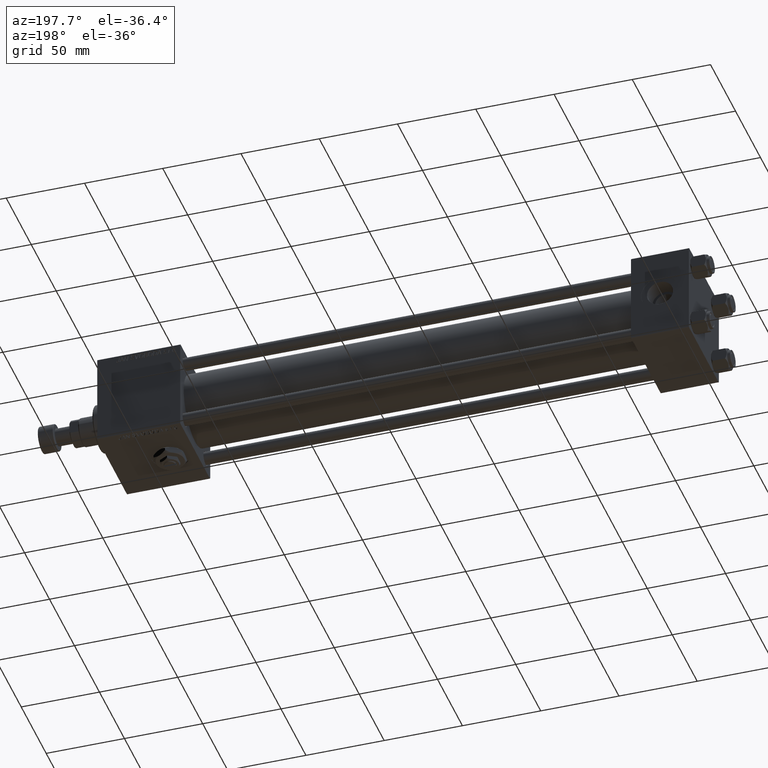
[diagram: clean part render]
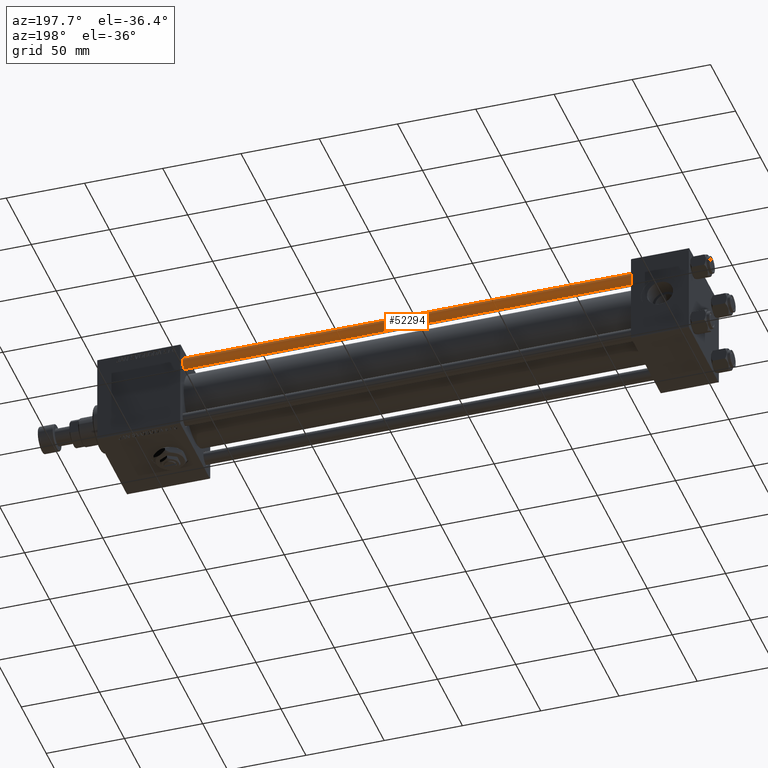
[diagram: same view with one face highlighted and labeled with its STEP entity id]
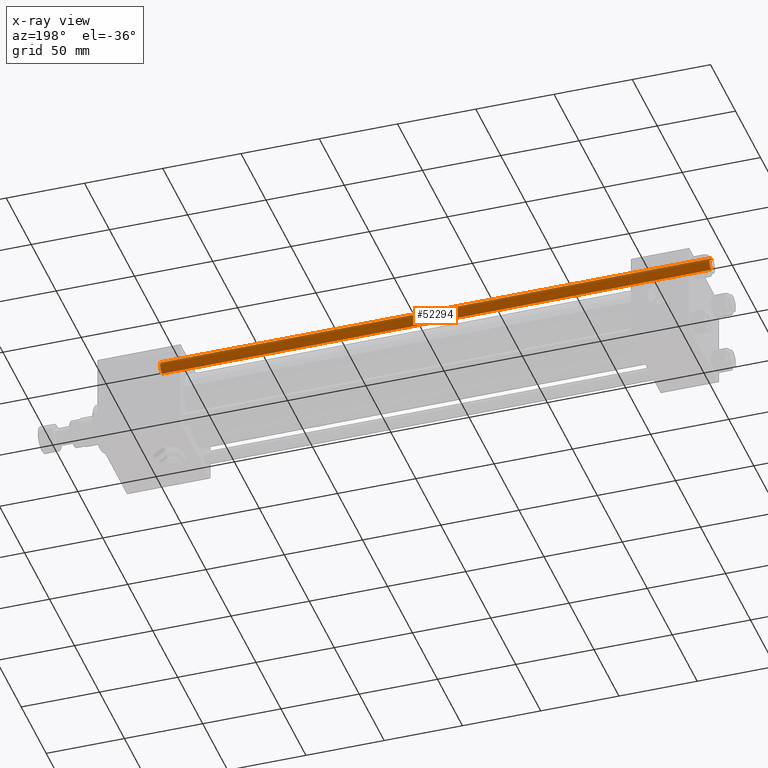
[diagram: x-ray of the same camera — body ghosted, the highlighted face saturated]
A machine part, auxiliary view. The second image highlights one B-rep face of the part: STEP entity #52294.
The next image is the same camera in x-ray: the body ghosted, the highlighted face saturated — about 0% of this face is hidden behind the body in this view.
In plain terms, the highlighted cylindrical surface (edge-blend (fillet) strip) has radius 4 mm, axis along (-1, 0, 0).
Its self-contained STEP definition (entity closure, byte-faithful):
#966 = AXIS2_PLACEMENT_3D ( 'NONE', #33173, #16945, #49659 ) ;
#1664 = DIRECTION ( 'NONE',  ( -1.000000000000000000, 0.000000000000000000, 0.000000000000000000 ) ) ;
#2452 = CARTESIAN_POINT ( 'NONE',  ( 0.000000000000000000, 0.000000000000000000, 352.0000000000000000 ) ) ;
#4411 = DIRECTION ( 'NONE',  ( -0.000000000000000000, -0.000000000000000000, -1.000000000000000000 ) ) ;
#5278 = VERTEX_POINT ( 'NONE', #44423 ) ;
#5931 = EDGE_CURVE ( 'NONE', #18452, #46487, #13184, .T. ) ;
#5933 = DIRECTION ( 'NONE',  ( -0.000000000000000000, -0.000000000000000000, -1.000000000000000000 ) ) ;
#9477 = EDGE_CURVE ( 'NONE', #46487, #13906, #28964, .T. ) ;
#10088 = CARTESIAN_POINT ( 'NONE',  ( -4.000000000000000000, 0.000000000000000000, 352.0000000000000000 ) ) ;
#10313 = CIRCLE ( 'NONE', #966, 4.000000000000000000 ) ;
#10675 = EDGE_CURVE ( 'NONE', #5278, #18452, #10313, .T. ) ;
#13184 = LINE ( 'NONE', #45364, #21191 ) ;
#13906 = VERTEX_POINT ( 'NONE', #15378 ) ;
#14091 = AXIS2_PLACEMENT_3D ( 'NONE', #2452, #5933, #1664 ) ;
#14535 = AXIS2_PLACEMENT_3D ( 'NONE', #31634, #35616, #51847 ) ;
#15378 = CARTESIAN_POINT ( 'NONE',  ( -4.000000000000000000, 0.000000000000000000, 0.5000000000000004441 ) ) ;
#16945 = DIRECTION ( 'NONE',  ( 0.000000000000000000, 0.000000000000000000, -1.000000000000000000 ) ) ;
#18452 = VERTEX_POINT ( 'NONE', #18695 ) ;
#18695 = CARTESIAN_POINT ( 'NONE',  ( 4.000000000000000000, 4.898587196589412829E-16, 351.5000000000000000 ) ) ;
#21191 = VECTOR ( 'NONE', #4411, 1000.000000000000000 ) ;
#24165 = ORIENTED_EDGE ( 'NONE', *, *, #5931, .T. ) ;
#28964 = CIRCLE ( 'NONE', #14535, 4.000000000000000000 ) ;
#29865 = FACE_OUTER_BOUND ( 'NONE', #39826, .T. ) ;
#30306 = LINE ( 'NONE', #10088, #51316 ) ;
#30656 = CYLINDRICAL_SURFACE ( 'NONE', #14091, 4.000000000000000000 ) ;
#31634 = CARTESIAN_POINT ( 'NONE',  ( 0.000000000000000000, 0.000000000000000000, 0.5000000000000004441 ) ) ;
#33173 = CARTESIAN_POINT ( 'NONE',  ( 0.000000000000000000, 0.000000000000000000, 351.5000000000000000 ) ) ;
#33919 = ORIENTED_EDGE ( 'NONE', *, *, #9477, .T. ) ;
#34029 = DIRECTION ( 'NONE',  ( -0.000000000000000000, -0.000000000000000000, -1.000000000000000000 ) ) ;
#35616 = DIRECTION ( 'NONE',  ( -0.000000000000000000, -0.000000000000000000, 1.000000000000000000 ) ) ;
#39826 = EDGE_LOOP ( 'NONE', ( #42286, #24165, #33919, #45683 ) ) ;
#42286 = ORIENTED_EDGE ( 'NONE', *, *, #10675, .T. ) ;
#44423 = CARTESIAN_POINT ( 'NONE',  ( -4.000000000000000000, 0.000000000000000000, 351.5000000000000000 ) ) ;
#45364 = CARTESIAN_POINT ( 'NONE',  ( 4.000000000000000000, 4.898587196589412829E-16, 352.0000000000000000 ) ) ;
#45683 = ORIENTED_EDGE ( 'NONE', *, *, #48186, .F. ) ;
#46487 = VERTEX_POINT ( 'NONE', #48164 ) ;
#48164 = CARTESIAN_POINT ( 'NONE',  ( 4.000000000000000000, 4.898587196589412829E-16, 0.5000000000000004441 ) ) ;
#48186 = EDGE_CURVE ( 'NONE', #5278, #13906, #30306, .T. ) ;
#49659 = DIRECTION ( 'NONE',  ( 1.000000000000000000, 0.000000000000000000, 0.000000000000000000 ) ) ;
#51316 = VECTOR ( 'NONE', #34029, 1000.000000000000000 ) ;
#51847 = DIRECTION ( 'NONE',  ( 1.000000000000000000, 0.000000000000000000, 0.000000000000000000 ) ) ;
#52294 = ADVANCED_FACE ( 'NONE', ( #29865 ), #30656, .T. ) ;